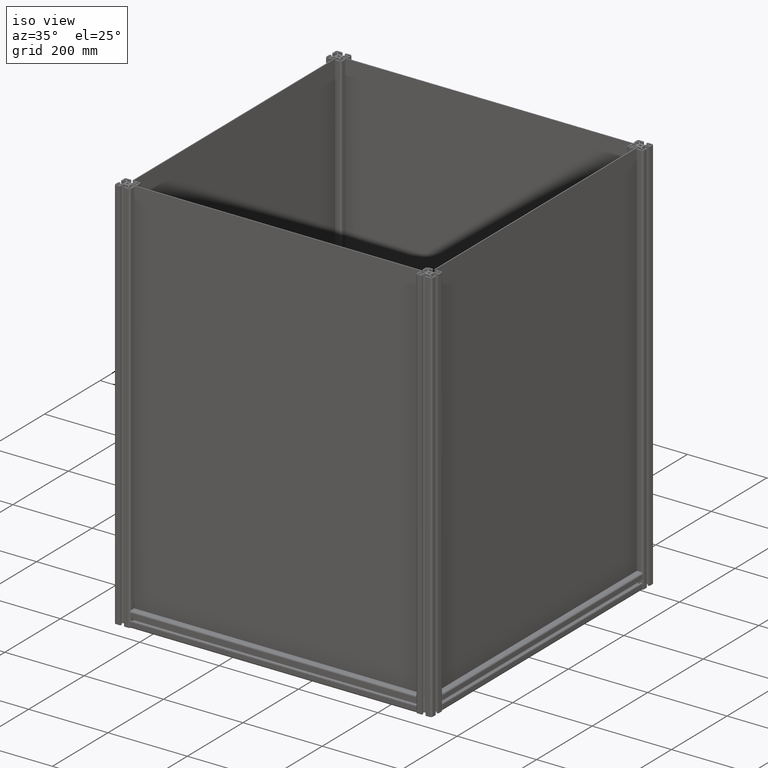
[diagram: clean part render]
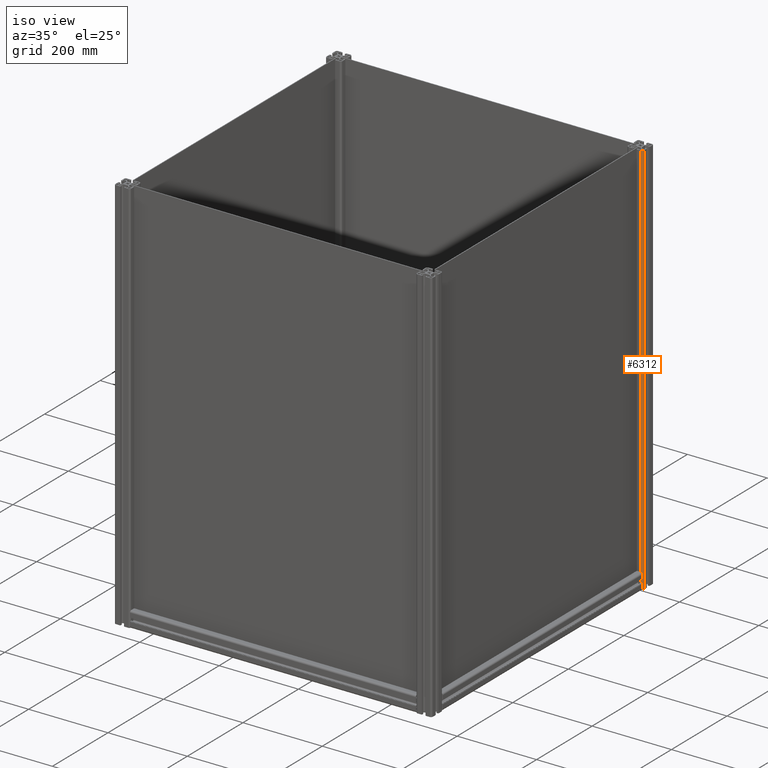
[diagram: same view with one face highlighted and labeled with its STEP entity id]
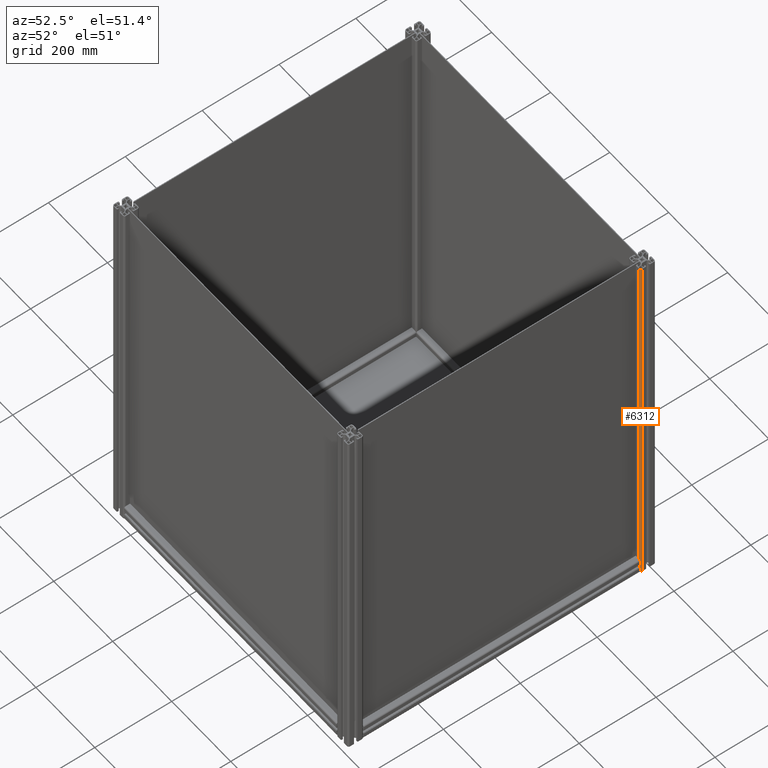
[diagram: same view with one face highlighted and labeled with its STEP entity id]
A machine part, iso view. The second image highlights one B-rep face of the part: STEP entity #6312.
A second angle (auxiliary view) of the same face is appended — the face is thin or edge-on in the first view.
In plain terms, the highlighted cylindrical surface (edge-blend (fillet) strip) has radius 4.5 mm, axis along (0, 0, -1).
Its self-contained STEP definition (entity closure, byte-faithful):
#28 = LINE ( 'NONE', #10786, #93 ) ;
#93 = VECTOR ( 'NONE', #3715, 1000.000000000000000 ) ;
#360 = VERTEX_POINT ( 'NONE', #11388 ) ;
#1320 = ORIENTED_EDGE ( 'NONE', *, *, #3729, .F. ) ;
#1517 = VERTEX_POINT ( 'NONE', #4351 ) ;
#2045 = DIRECTION ( 'NONE',  ( 1.000000000000000000, 0.000000000000000000, 0.000000000000000000 ) ) ;
#2134 = CARTESIAN_POINT ( 'NONE',  ( 15.50000000000000000, -15.49999999999820055, 600.0000000000000000 ) ) ;
#2468 = DIRECTION ( 'NONE',  ( 0.000000000000000000, 0.000000000000000000, 1.000000000000000000 ) ) ;
#2515 = EDGE_CURVE ( 'NONE', #10020, #360, #9728, .T. ) ;
#2893 = EDGE_LOOP ( 'NONE', ( #9878, #1320, #9733, #9765 ) ) ;
#2934 = CIRCLE ( 'NONE', #7150, 4.500000000000000888 ) ;
#3715 = DIRECTION ( 'NONE',  ( 0.000000000000000000, 0.000000000000000000, -1.000000000000000000 ) ) ;
#3729 = EDGE_CURVE ( 'NONE', #1517, #9923, #2934, .T. ) ;
#3983 = AXIS2_PLACEMENT_3D ( 'NONE', #8219, #6529, #9109 ) ;
#4351 = CARTESIAN_POINT ( 'NONE',  ( 15.50000000000000000, -19.99999999999819877, 600.0000000000000000 ) ) ;
#4552 = FACE_OUTER_BOUND ( 'NONE', #2893, .T. ) ;
#4601 = DIRECTION ( 'NONE',  ( 0.000000000000000000, 0.000000000000000000, -1.000000000000000000 ) ) ;
#5864 = LINE ( 'NONE', #8714, #9740 ) ;
#6312 = ADVANCED_FACE ( 'NONE', ( #4552 ), #8490, .T. ) ;
#6529 = DIRECTION ( 'NONE',  ( 0.000000000000000000, 0.000000000000000000, -1.000000000000000000 ) ) ;
#7150 = AXIS2_PLACEMENT_3D ( 'NONE', #2134, #8066, #2045 ) ;
#8066 = DIRECTION ( 'NONE',  ( 0.000000000000000000, 0.000000000000000000, 1.000000000000000000 ) ) ;
#8163 = CARTESIAN_POINT ( 'NONE',  ( 20.00000000000000000, -15.49999999999820055, -400.0000000000000000 ) ) ;
#8190 = CARTESIAN_POINT ( 'NONE',  ( 15.50000000000000000, -15.49999999999820055, -400.0000000000000000 ) ) ;
#8219 = CARTESIAN_POINT ( 'NONE',  ( 15.50000000000000000, -15.49999999999820055, 800.0000000000000000 ) ) ;
#8277 = DIRECTION ( 'NONE',  ( -1.000000000000000000, 0.000000000000000000, 0.000000000000000000 ) ) ;
#8490 = CYLINDRICAL_SURFACE ( 'NONE', #3983, 4.500000000000000888 ) ;
#8654 = AXIS2_PLACEMENT_3D ( 'NONE', #8190, #4601, #8277 ) ;
#8672 = EDGE_CURVE ( 'NONE', #1517, #360, #28, .T. ) ;
#8714 = CARTESIAN_POINT ( 'NONE',  ( 20.00000000000000000, -15.49999999999820055, 800.0000000000000000 ) ) ;
#9109 = DIRECTION ( 'NONE',  ( -1.000000000000000000, 0.000000000000000000, 0.000000000000000000 ) ) ;
#9299 = CARTESIAN_POINT ( 'NONE',  ( 20.00000000000000000, -15.49999999999820055, 600.0000000000000000 ) ) ;
#9728 = CIRCLE ( 'NONE', #8654, 4.500000000000000888 ) ;
#9733 = ORIENTED_EDGE ( 'NONE', *, *, #8672, .T. ) ;
#9740 = VECTOR ( 'NONE', #2468, 1000.000000000000000 ) ;
#9765 = ORIENTED_EDGE ( 'NONE', *, *, #2515, .F. ) ;
#9878 = ORIENTED_EDGE ( 'NONE', *, *, #10199, .T. ) ;
#9923 = VERTEX_POINT ( 'NONE', #9299 ) ;
#10020 = VERTEX_POINT ( 'NONE', #8163 ) ;
#10199 = EDGE_CURVE ( 'NONE', #10020, #9923, #5864, .T. ) ;
#10786 = CARTESIAN_POINT ( 'NONE',  ( 15.50000000000000000, -19.99999999999819877, 800.0000000000000000 ) ) ;
#11388 = CARTESIAN_POINT ( 'NONE',  ( 15.50000000000000000, -19.99999999999819877, -400.0000000000000000 ) ) ;